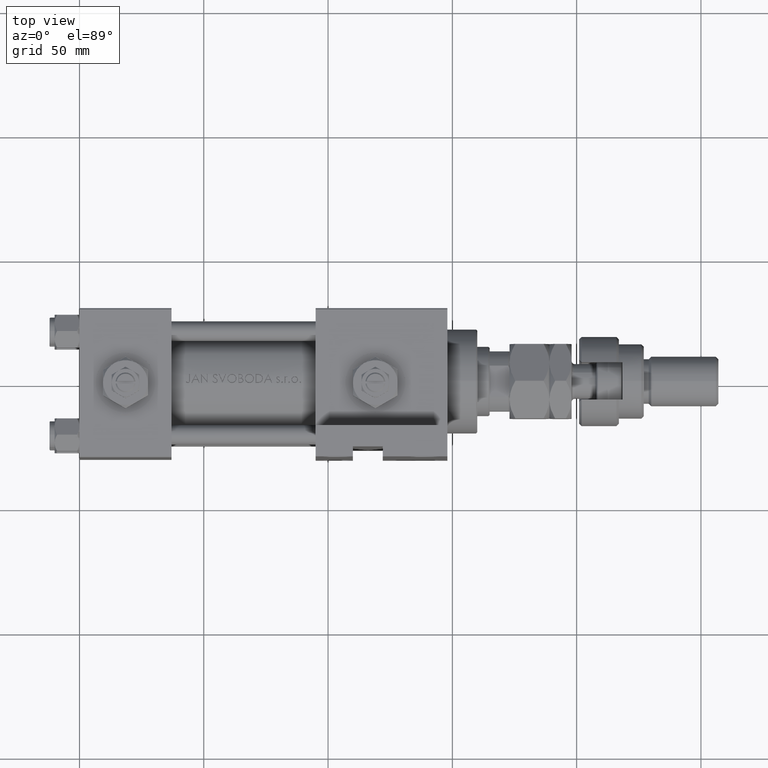
[diagram: clean part render]
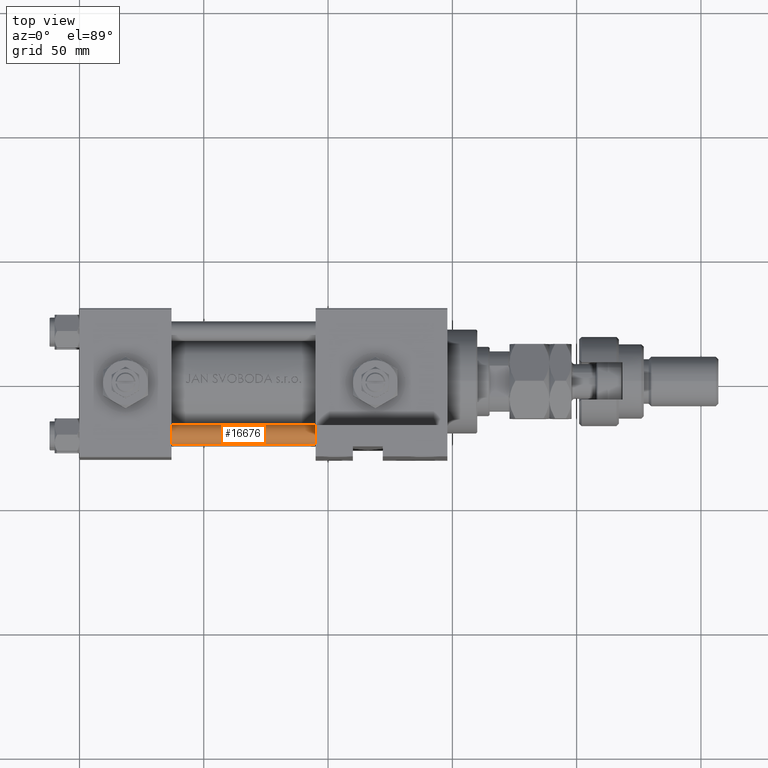
[diagram: same view with one face highlighted and labeled with its STEP entity id]
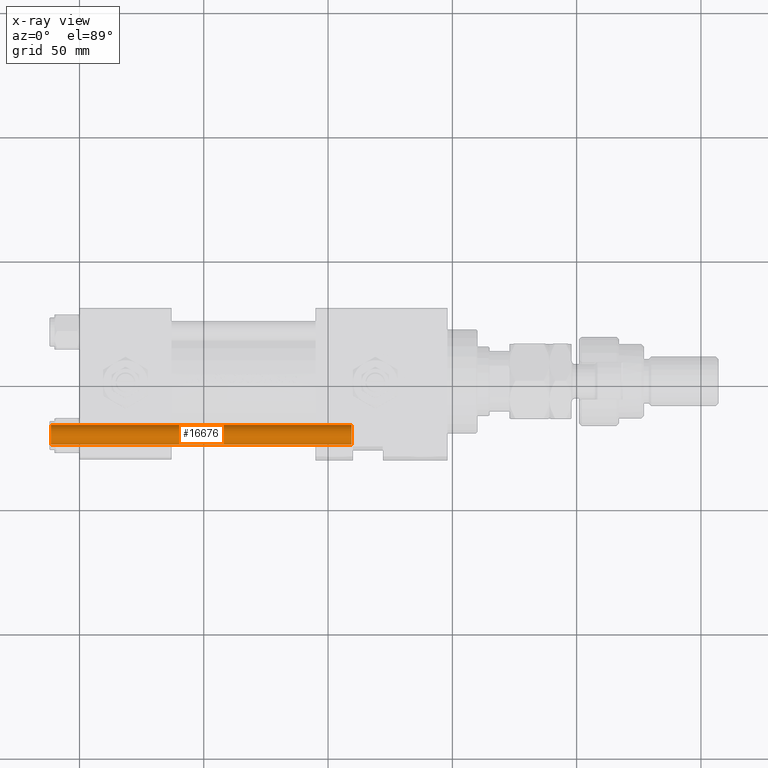
[diagram: x-ray of the same camera — body ghosted, the highlighted face saturated]
A machine part, top view. The second image highlights one B-rep face of the part: STEP entity #16676.
The next image is the same camera in x-ray: the body ghosted, the highlighted face saturated — about 0% of this face is hidden behind the body in this view.
In plain terms, the highlighted cylindrical surface (edge-blend (fillet) strip) has radius 4 mm, axis along (1, -0, 0).
Its self-contained STEP definition (entity closure, byte-faithful):
#129 = LINE ( 'NONE', #17198, #16303 ) ;
#2668 = CARTESIAN_POINT ( 'NONE',  ( 0.000000000000000000, 0.000000000000000000, 122.0000000000000000 ) ) ;
#3475 = DIRECTION ( 'NONE',  ( -1.000000000000000000, 0.000000000000000000, 0.000000000000000000 ) ) ;
#3909 = EDGE_CURVE ( 'NONE', #12420, #41503, #35502, .T. ) ;
#4570 = AXIS2_PLACEMENT_3D ( 'NONE', #9805, #16681, #46692 ) ;
#4951 = LINE ( 'NONE', #11173, #31384 ) ;
#6769 = ORIENTED_EDGE ( 'NONE', *, *, #31878, .F. ) ;
#9805 = CARTESIAN_POINT ( 'NONE',  ( 0.000000000000000000, 0.000000000000000000, 0.5000000000000559552 ) ) ;
#11173 = CARTESIAN_POINT ( 'NONE',  ( 4.000000000000000000, 4.898587196589411843E-16, 122.0000000000000000 ) ) ;
#11901 = FACE_OUTER_BOUND ( 'NONE', #51680, .T. ) ;
#12407 = ORIENTED_EDGE ( 'NONE', *, *, #46655, .T. ) ;
#12420 = VERTEX_POINT ( 'NONE', #14089 ) ;
#14089 = CARTESIAN_POINT ( 'NONE',  ( 4.000000000000000000, 4.898587196589411843E-16, 121.5000000000000426 ) ) ;
#15151 = DIRECTION ( 'NONE',  ( -0.000000000000000000, -0.000000000000000000, -1.000000000000000000 ) ) ;
#15847 = CIRCLE ( 'NONE', #4570, 4.000000000000000000 ) ;
#15983 = EDGE_CURVE ( 'NONE', #41503, #44332, #129, .T. ) ;
#16303 = VECTOR ( 'NONE', #33749, 1000.000000000000000 ) ;
#16439 = AXIS2_PLACEMENT_3D ( 'NONE', #45897, #36698, #41035 ) ;
#16676 = ADVANCED_FACE ( 'NONE', ( #11901 ), #27626, .T. ) ;
#16681 = DIRECTION ( 'NONE',  ( -0.000000000000000000, -0.000000000000000000, 1.000000000000000000 ) ) ;
#17198 = CARTESIAN_POINT ( 'NONE',  ( -4.000000000000000000, 0.000000000000000000, 122.0000000000000000 ) ) ;
#24454 = CARTESIAN_POINT ( 'NONE',  ( 4.000000000000000000, 4.898587196589411843E-16, 0.5000000000000559552 ) ) ;
#26801 = ORIENTED_EDGE ( 'NONE', *, *, #3909, .T. ) ;
#27626 = CYLINDRICAL_SURFACE ( 'NONE', #51831, 4.000000000000000000 ) ;
#31384 = VECTOR ( 'NONE', #36115, 1000.000000000000000 ) ;
#31878 = EDGE_CURVE ( 'NONE', #12420, #33269, #4951, .T. ) ;
#33269 = VERTEX_POINT ( 'NONE', #24454 ) ;
#33749 = DIRECTION ( 'NONE',  ( -0.000000000000000000, -0.000000000000000000, -1.000000000000000000 ) ) ;
#34529 = CARTESIAN_POINT ( 'NONE',  ( -4.000000000000000000, 0.000000000000000000, 121.5000000000000426 ) ) ;
#35502 = CIRCLE ( 'NONE', #16439, 4.000000000000000000 ) ;
#36115 = DIRECTION ( 'NONE',  ( -0.000000000000000000, -0.000000000000000000, -1.000000000000000000 ) ) ;
#36698 = DIRECTION ( 'NONE',  ( 0.000000000000000000, 0.000000000000000000, -1.000000000000000000 ) ) ;
#41035 = DIRECTION ( 'NONE',  ( 1.000000000000000000, 0.000000000000000000, 0.000000000000000000 ) ) ;
#41503 = VERTEX_POINT ( 'NONE', #34529 ) ;
#42477 = ORIENTED_EDGE ( 'NONE', *, *, #15983, .T. ) ;
#44332 = VERTEX_POINT ( 'NONE', #53589 ) ;
#45897 = CARTESIAN_POINT ( 'NONE',  ( 0.000000000000000000, 0.000000000000000000, 121.5000000000000426 ) ) ;
#46655 = EDGE_CURVE ( 'NONE', #44332, #33269, #15847, .T. ) ;
#46692 = DIRECTION ( 'NONE',  ( 1.000000000000000000, 0.000000000000000000, 0.000000000000000000 ) ) ;
#51680 = EDGE_LOOP ( 'NONE', ( #6769, #26801, #42477, #12407 ) ) ;
#51831 = AXIS2_PLACEMENT_3D ( 'NONE', #2668, #15151, #3475 ) ;
#53589 = CARTESIAN_POINT ( 'NONE',  ( -4.000000000000000000, 0.000000000000000000, 0.5000000000000559552 ) ) ;